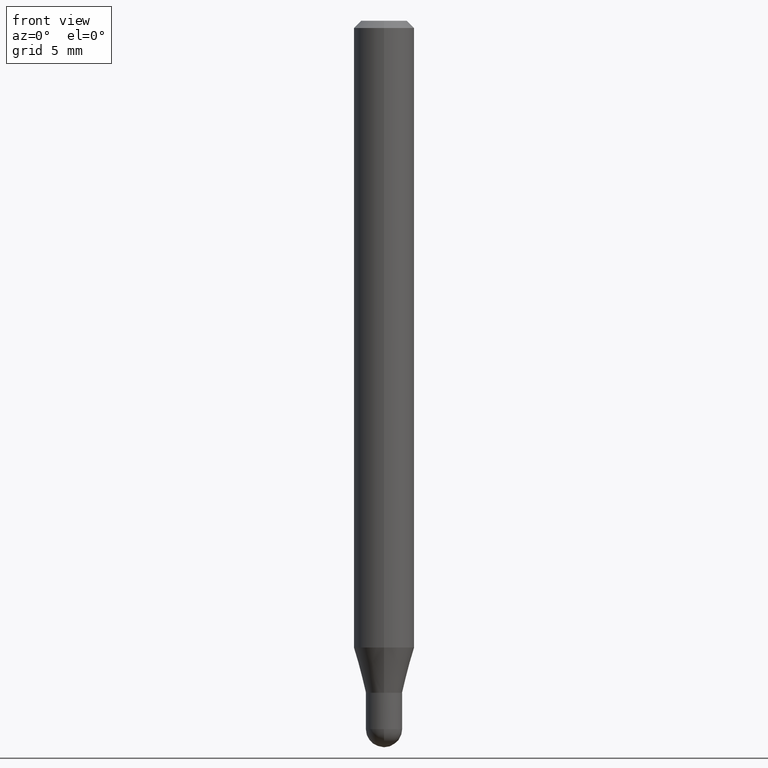
[diagram: clean part render]
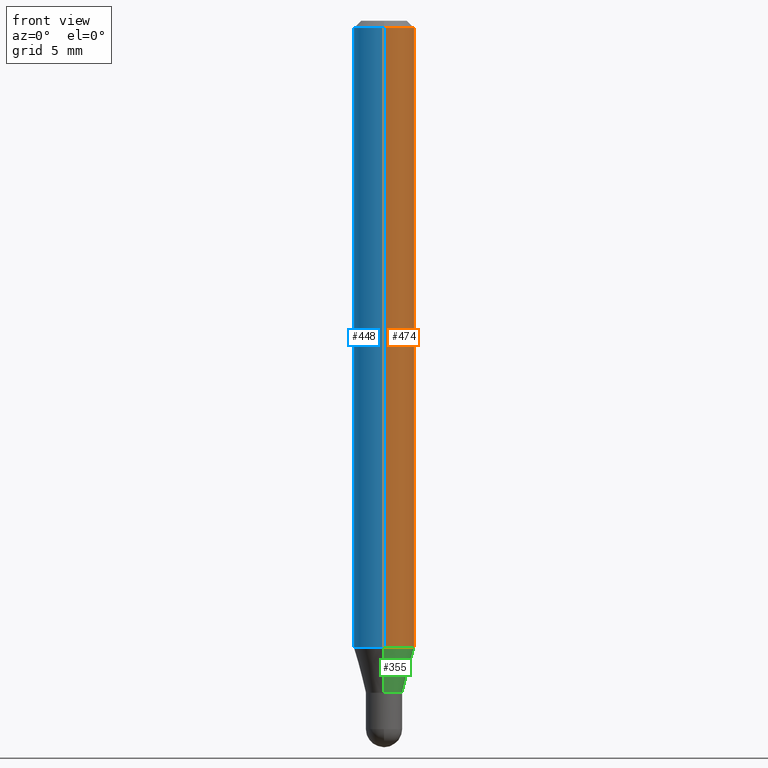
[diagram: same view with three faces highlighted in distinct colors, each labeled with its STEP entity id]
A machine part, front view with three faces highlighted in distinct colors.
Their STEP definitions:

[orange] entity #474 — the highlighted cylindrical surface (edge-blend (fillet) strip) has radius 1.5875 mm, axis along (-0, 0, 1).
#14 = DIRECTION ( 'NONE',  ( -2.445502103091854659E-29, 3.491433655777583102E-15, 1.000000000000000000 ) ) ;
#22 = EDGE_CURVE ( 'NONE', #52, #501, #340, .T. ) ;
#52 = VERTEX_POINT ( 'NONE', #384 ) ;
#56 = ORIENTED_EDGE ( 'NONE', *, *, #305, .F. ) ;
#64 = DIRECTION ( 'NONE',  ( -6.982962677686265922E-15, -1.000000000000000000, 4.370956789862821150E-15 ) ) ;
#79 = CIRCLE ( 'NONE', #374, 0.06250000000000000000 ) ;
#89 = EDGE_CURVE ( 'NONE', #52, #381, #165, .T. ) ;
#102 = AXIS2_PLACEMENT_3D ( 'NONE', #456, #177, #64 ) ;
#116 = CARTESIAN_POINT ( 'NONE',  ( 4.440892098500944664E-16, 0.06249999999999995143, -0.01500000000000022669 ) ) ;
#117 = DIRECTION ( 'NONE',  ( -6.982962677686265922E-15, -1.000000000000000000, 3.483106191921935554E-15 ) ) ;
#123 = CARTESIAN_POINT ( 'NONE',  ( 3.668253154637784266E-31, -5.237150483666377464E-17, -0.01500000000000000812 ) ) ;
#124 = EDGE_LOOP ( 'NONE', ( #405, #161, #56, #403 ) ) ;
#134 = FACE_OUTER_BOUND ( 'NONE', #124, .T. ) ;
#161 = ORIENTED_EDGE ( 'NONE', *, *, #408, .T. ) ;
#165 = CIRCLE ( 'NONE', #102, 0.06250000000000000000 ) ;
#169 = CARTESIAN_POINT ( 'NONE',  ( -4.364351673553916201E-16, -0.06250000000000000000, 2.182146034860989193E-16 ) ) ;
#177 = DIRECTION ( 'NONE',  ( -2.445502103091854659E-29, 3.491433655777583102E-15, 1.000000000000000000 ) ) ;
#200 = DIRECTION ( 'NONE',  ( -2.445502103091854659E-29, 3.491433655777583102E-15, 1.000000000000000000 ) ) ;
#208 = AXIS2_PLACEMENT_3D ( 'NONE', #295, #14, #492 ) ;
#240 = CARTESIAN_POINT ( 'NONE',  ( 4.440892098500939734E-16, 0.06249999999999544809, -1.294198729810781323 ) ) ;
#291 = CARTESIAN_POINT ( 'NONE',  ( -4.364351673553912750E-16, -0.06250000000000005551, -0.01499999999999979128 ) ) ;
#295 = CARTESIAN_POINT ( 'NONE',  ( 0.000000000000000000, 0.000000000000000000, 0.000000000000000000 ) ) ;
#305 = EDGE_CURVE ( 'NONE', #501, #438, #79, .T. ) ;
#318 = DIRECTION ( 'NONE',  ( -2.445502103091854939E-29, 3.491433655777583497E-15, 1.000000000000000000 ) ) ;
#331 = CYLINDRICAL_SURFACE ( 'NONE', #208, 0.06250000000000000000 ) ;
#340 = LINE ( 'NONE', #169, #429 ) ;
#362 = VECTOR ( 'NONE', #318, 39.37007874015748143 ) ;
#374 = AXIS2_PLACEMENT_3D ( 'NONE', #123, #200, #117 ) ;
#381 = VERTEX_POINT ( 'NONE', #240 ) ;
#384 = CARTESIAN_POINT ( 'NONE',  ( -4.364351673553602629E-16, -0.06250000000000455191, -1.294198729810780879 ) ) ;
#403 = ORIENTED_EDGE ( 'NONE', *, *, #22, .F. ) ;
#404 = CARTESIAN_POINT ( 'NONE',  ( 4.440892098500625669E-16, 0.06250000000000000000, -2.182146034860989193E-16 ) ) ;
#405 = ORIENTED_EDGE ( 'NONE', *, *, #89, .T. ) ;
#408 = EDGE_CURVE ( 'NONE', #381, #438, #410, .T. ) ;
#410 = LINE ( 'NONE', #404, #362 ) ;
#429 = VECTOR ( 'NONE', #494, 39.37007874015748143 ) ;
#438 = VERTEX_POINT ( 'NONE', #116 ) ;
#456 = CARTESIAN_POINT ( 'NONE',  ( 3.164965715571072144E-29, -4.518609002525959102E-15, -1.294198729810781101 ) ) ;
#474 = ADVANCED_FACE ( 'NONE', ( #134 ), #331, .T. ) ;
#492 = DIRECTION ( 'NONE',  ( -6.982962677686265922E-15, -1.000000000000000000, 3.491433655777582708E-15 ) ) ;
#494 = DIRECTION ( 'NONE',  ( -2.445502103091854939E-29, 3.491433655777583497E-15, 1.000000000000000000 ) ) ;
#501 = VERTEX_POINT ( 'NONE', #291 ) ;

[blue] entity #448 — the highlighted cylindrical surface (edge-blend (fillet) strip) has radius 1.5875 mm, axis along (-0, 0, 1).
#22 = EDGE_CURVE ( 'NONE', #52, #501, #340, .T. ) ;
#52 = VERTEX_POINT ( 'NONE', #384 ) ;
#80 = CARTESIAN_POINT ( 'NONE',  ( 0.000000000000000000, 0.000000000000000000, 0.000000000000000000 ) ) ;
#86 = ORIENTED_EDGE ( 'NONE', *, *, #408, .F. ) ;
#105 = AXIS2_PLACEMENT_3D ( 'NONE', #511, #224, #185 ) ;
#116 = CARTESIAN_POINT ( 'NONE',  ( 4.440892098500944664E-16, 0.06249999999999995143, -0.01500000000000022669 ) ) ;
#136 = AXIS2_PLACEMENT_3D ( 'NONE', #80, #238, #378 ) ;
#144 = DIRECTION ( 'NONE',  ( -2.445502103091854659E-29, 3.491433655777583102E-15, 1.000000000000000000 ) ) ;
#169 = CARTESIAN_POINT ( 'NONE',  ( -4.364351673553916201E-16, -0.06250000000000000000, 2.182146034860989193E-16 ) ) ;
#179 = DIRECTION ( 'NONE',  ( -6.982962677686265922E-15, -1.000000000000000000, 4.370956789862821150E-15 ) ) ;
#185 = DIRECTION ( 'NONE',  ( -6.982962677686265922E-15, -1.000000000000000000, 3.483106191921935554E-15 ) ) ;
#197 = AXIS2_PLACEMENT_3D ( 'NONE', #424, #144, #179 ) ;
#206 = ORIENTED_EDGE ( 'NONE', *, *, #252, .T. ) ;
#219 = ORIENTED_EDGE ( 'NONE', *, *, #264, .F. ) ;
#224 = DIRECTION ( 'NONE',  ( -2.445502103091854659E-29, 3.491433655777583102E-15, 1.000000000000000000 ) ) ;
#238 = DIRECTION ( 'NONE',  ( -2.445502103091854659E-29, 3.491433655777583102E-15, 1.000000000000000000 ) ) ;
#240 = CARTESIAN_POINT ( 'NONE',  ( 4.440892098500939734E-16, 0.06249999999999544809, -1.294198729810781323 ) ) ;
#252 = EDGE_CURVE ( 'NONE', #381, #52, #487, .T. ) ;
#264 = EDGE_CURVE ( 'NONE', #438, #501, #423, .T. ) ;
#291 = CARTESIAN_POINT ( 'NONE',  ( -4.364351673553912750E-16, -0.06250000000000005551, -0.01499999999999979128 ) ) ;
#316 = EDGE_LOOP ( 'NONE', ( #86, #206, #440, #219 ) ) ;
#318 = DIRECTION ( 'NONE',  ( -2.445502103091854939E-29, 3.491433655777583497E-15, 1.000000000000000000 ) ) ;
#340 = LINE ( 'NONE', #169, #429 ) ;
#362 = VECTOR ( 'NONE', #318, 39.37007874015748143 ) ;
#378 = DIRECTION ( 'NONE',  ( -6.982962677686265922E-15, -1.000000000000000000, 3.491433655777582708E-15 ) ) ;
#381 = VERTEX_POINT ( 'NONE', #240 ) ;
#384 = CARTESIAN_POINT ( 'NONE',  ( -4.364351673553602629E-16, -0.06250000000000455191, -1.294198729810780879 ) ) ;
#404 = CARTESIAN_POINT ( 'NONE',  ( 4.440892098500625669E-16, 0.06250000000000000000, -2.182146034860989193E-16 ) ) ;
#408 = EDGE_CURVE ( 'NONE', #381, #438, #410, .T. ) ;
#410 = LINE ( 'NONE', #404, #362 ) ;
#423 = CIRCLE ( 'NONE', #105, 0.06250000000000000000 ) ;
#424 = CARTESIAN_POINT ( 'NONE',  ( 3.164965715571072144E-29, -4.518609002525959102E-15, -1.294198729810781101 ) ) ;
#429 = VECTOR ( 'NONE', #494, 39.37007874015748143 ) ;
#437 = CYLINDRICAL_SURFACE ( 'NONE', #136, 0.06250000000000000000 ) ;
#438 = VERTEX_POINT ( 'NONE', #116 ) ;
#440 = ORIENTED_EDGE ( 'NONE', *, *, #22, .T. ) ;
#448 = ADVANCED_FACE ( 'NONE', ( #475 ), #437, .T. ) ;
#475 = FACE_OUTER_BOUND ( 'NONE', #316, .T. ) ;
#487 = CIRCLE ( 'NONE', #197, 0.06250000000000000000 ) ;
#494 = DIRECTION ( 'NONE',  ( -2.445502103091854939E-29, 3.491433655777583497E-15, 1.000000000000000000 ) ) ;
#501 = VERTEX_POINT ( 'NONE', #291 ) ;
#511 = CARTESIAN_POINT ( 'NONE',  ( 3.668253154637784266E-31, -5.237150483666377464E-17, -0.01500000000000000812 ) ) ;

[green] entity #355 — the highlighted conical surface has half-angle 15 deg.
#6 = VECTOR ( 'NONE', #462, 39.37007874015748143 ) ;
#8 = FACE_OUTER_BOUND ( 'NONE', #11, .T. ) ;
#11 = EDGE_LOOP ( 'NONE', ( #278, #373, #244, #175 ) ) ;
#16 = CARTESIAN_POINT ( 'NONE',  ( 2.664535259100708892E-16, 0.03749999999999507200, -1.387500000000000178 ) ) ;
#29 = LINE ( 'NONE', #16, #6 ) ;
#40 = VERTEX_POINT ( 'NONE', #421 ) ;
#41 = CARTESIAN_POINT ( 'NONE',  ( 3.393134168039948742E-29, -4.844364197391397644E-15, -1.387500000000000178 ) ) ;
#48 = EDGE_CURVE ( 'NONE', #333, #52, #294, .T. ) ;
#52 = VERTEX_POINT ( 'NONE', #384 ) ;
#57 = EDGE_CURVE ( 'NONE', #40, #381, #29, .T. ) ;
#64 = DIRECTION ( 'NONE',  ( -6.982962677686265922E-15, -1.000000000000000000, 4.370956789862821150E-15 ) ) ;
#89 = EDGE_CURVE ( 'NONE', #52, #381, #165, .T. ) ;
#102 = AXIS2_PLACEMENT_3D ( 'NONE', #456, #177, #64 ) ;
#143 = CONICAL_SURFACE ( 'NONE', #207, 0.03749999999999991535, 0.2617993877991579565 ) ;
#151 = DIRECTION ( 'NONE',  ( -2.445502103091854659E-29, 3.491433655777583102E-15, 1.000000000000000000 ) ) ;
#165 = CIRCLE ( 'NONE', #102, 0.06250000000000000000 ) ;
#175 = ORIENTED_EDGE ( 'NONE', *, *, #48, .F. ) ;
#177 = DIRECTION ( 'NONE',  ( -2.445502103091854659E-29, 3.491433655777583102E-15, 1.000000000000000000 ) ) ;
#181 = AXIS2_PLACEMENT_3D ( 'NONE', #194, #478, #441 ) ;
#194 = CARTESIAN_POINT ( 'NONE',  ( 3.393134168039948742E-29, -4.844364197391397644E-15, -1.387500000000000178 ) ) ;
#207 = AXIS2_PLACEMENT_3D ( 'NONE', #41, #151, #322 ) ;
#240 = CARTESIAN_POINT ( 'NONE',  ( 4.440892098500939734E-16, 0.06249999999999544809, -1.294198729810781323 ) ) ;
#244 = ORIENTED_EDGE ( 'NONE', *, *, #89, .F. ) ;
#275 = CARTESIAN_POINT ( 'NONE',  ( -2.618611004132004397E-16, -0.03750000000000475869, -1.387500000000000178 ) ) ;
#278 = ORIENTED_EDGE ( 'NONE', *, *, #375, .T. ) ;
#294 = LINE ( 'NONE', #296, #393 ) ;
#296 = CARTESIAN_POINT ( 'NONE',  ( -2.618611004132004397E-16, -0.03750000000000475869, -1.387500000000000178 ) ) ;
#322 = DIRECTION ( 'NONE',  ( -6.982962677686266711E-15, -1.000000000000000000, 0.000000000000000000 ) ) ;
#333 = VERTEX_POINT ( 'NONE', #275 ) ;
#344 = CIRCLE ( 'NONE', #181, 0.03749999999999991535 ) ;
#355 = ADVANCED_FACE ( 'NONE', ( #8 ), #143, .T. ) ;
#373 = ORIENTED_EDGE ( 'NONE', *, *, #57, .T. ) ;
#375 = EDGE_CURVE ( 'NONE', #333, #40, #344, .T. ) ;
#381 = VERTEX_POINT ( 'NONE', #240 ) ;
#384 = CARTESIAN_POINT ( 'NONE',  ( -4.364351673553602629E-16, -0.06250000000000455191, -1.294198729810780879 ) ) ;
#393 = VECTOR ( 'NONE', #496, 39.37007874015748143 ) ;
#421 = CARTESIAN_POINT ( 'NONE',  ( 3.552713678800826532E-16, 0.03749999999999507200, -1.387500000000000178 ) ) ;
#441 = DIRECTION ( 'NONE',  ( -6.982962677686266711E-15, -1.000000000000000000, 0.000000000000000000 ) ) ;
#456 = CARTESIAN_POINT ( 'NONE',  ( 3.164965715571072144E-29, -4.518609002525959102E-15, -1.294198729810781101 ) ) ;
#462 = DIRECTION ( 'NONE',  ( 1.839019923739653169E-15, 0.2588190451025323968, 0.9659258262890650926 ) ) ;
#478 = DIRECTION ( 'NONE',  ( -2.445502103091854659E-29, 3.491433655777583102E-15, 1.000000000000000000 ) ) ;
#496 = DIRECTION ( 'NONE',  ( -1.807323732225382204E-15, -0.2588190451025256245, 0.9659258262890669799 ) ) ;